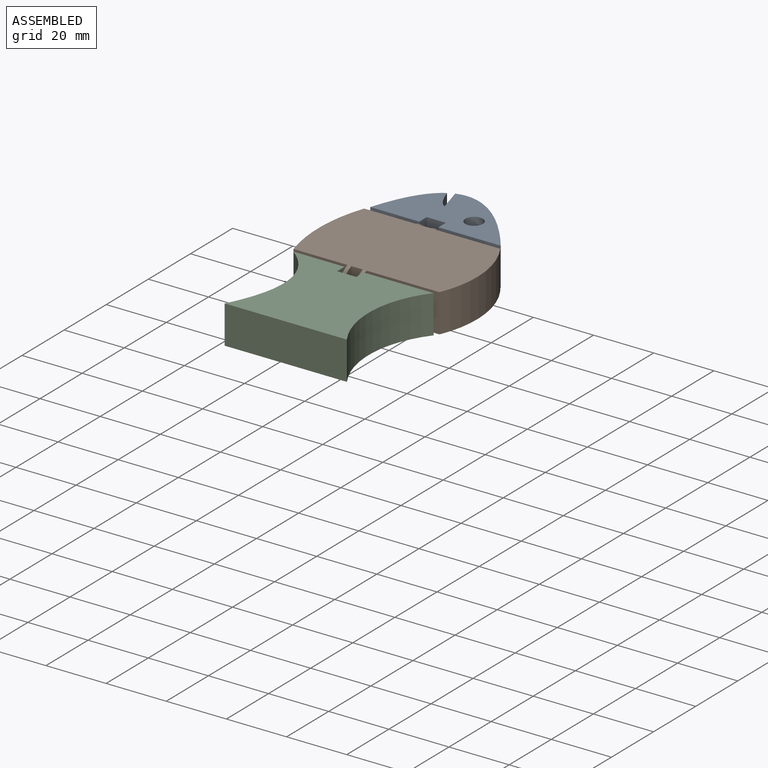
[diagram: assembled view]
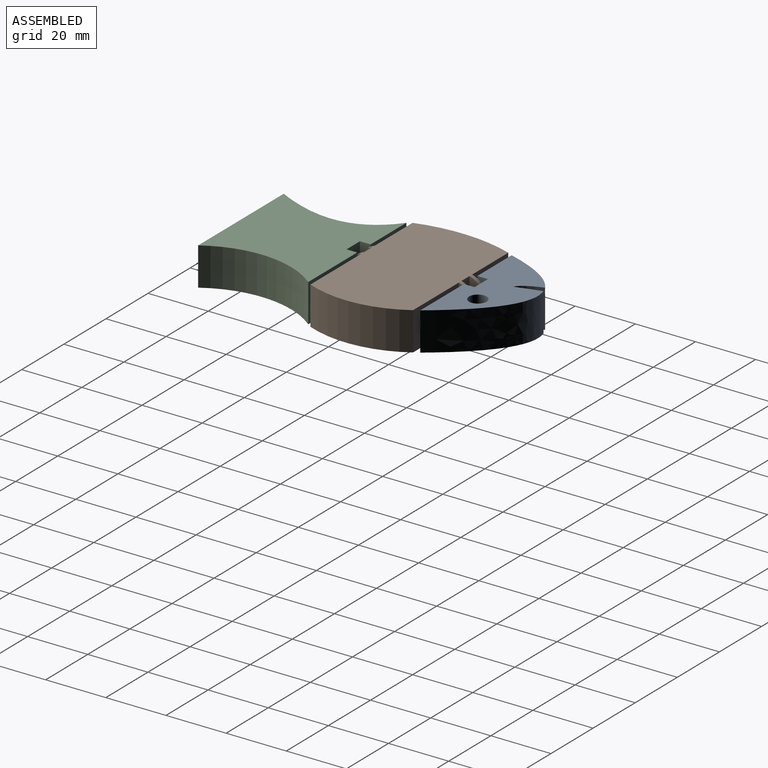
[diagram: assembled view, second angle]
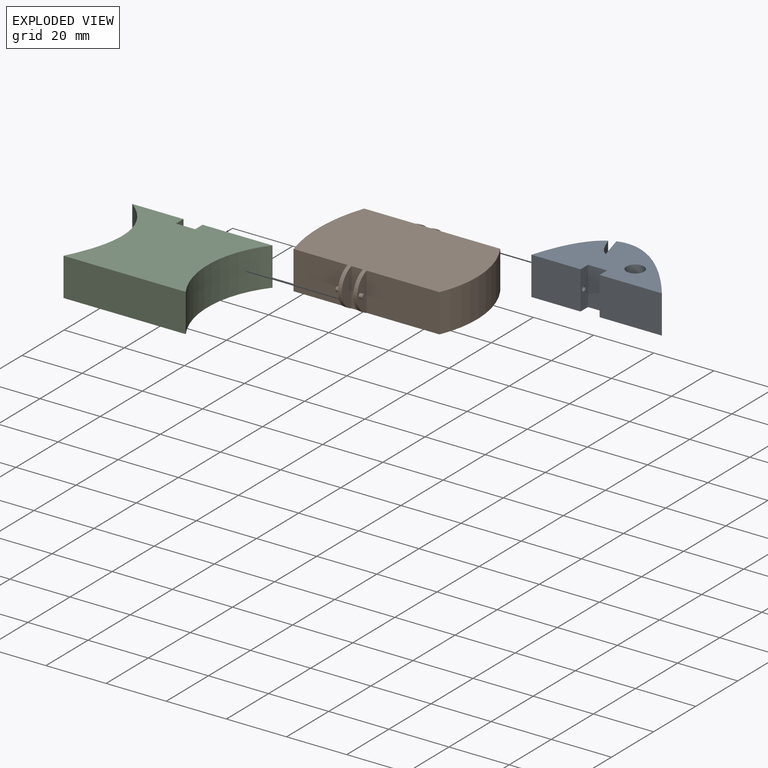
[diagram: exploded view]
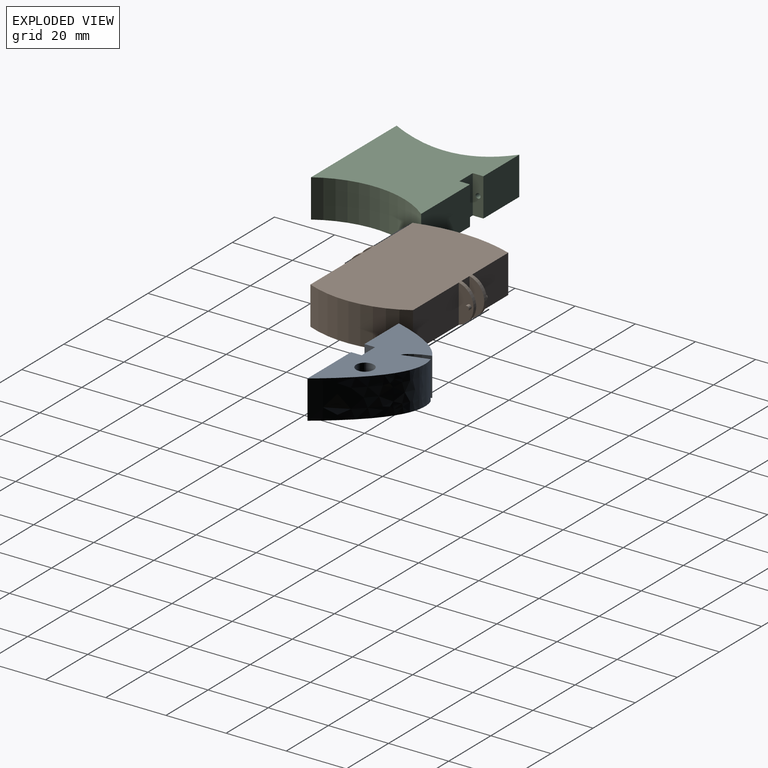
[diagram: exploded view, second angle]
ASSEMBLY  parts=3 mates=2
PART A: 17 faces, bbox 46.8x12.7x26 mm
  f0: extruded ~12.7x1.36mm, area 17.3mm2, adj f1,f5,f9,f16
  f1: plane 46.83x26.04mm, normal (0,-1,0), area 542.3mm2, adj f0,f2,f3,f4,f6,f7,f8,f9
  f2: extruded ~19.43x12.7mm, area 295.5mm2, adj f1,f5,f7,f15
  f3: extruded ~29.42x20.93mm, area 481.4mm2, adj f1,f5,f8,f16
  f4: plane 12.7x3.54mm, normal (1,0,0), area 42.8mm2, adj f1,f5,f10,f13,f15
  f5: plane 46.82x26.04mm, normal (0,1,0), area 542.3mm2, adj f0,f2,f3,f4,f6,f7,f8,f9
  f6: cylinder r=2.93mm len=12.7mm, axis (0,-1,0), area 233.6mm2, adj f1,f5
  f7: extruded ~12.7x7.45mm, area 112.1mm2, adj f1,f2,f5,f8
  f8: plane 12.7x8.38mm, normal (-0.96,0,-0.27), area 110.6mm2, adj f1,f3,f5,f7
  f9: plane 12.7x3.54mm, normal (-1,0,0), area 42.8mm2, adj f0,f1,f5,f10,f11
  f10: plane 12.7x6.35mm, normal (0,0,-1), area 80.6mm2, adj f1,f4,f5,f9
  f11: cylinder r=0.83mm len=2.54mm, axis (-1,0,0), area 13.2mm2, adj f9,f12
  f12: plane 1.65x1.65mm, normal (-1,0,0), area 2.1mm2, adj f11
  f13: cylinder r=0.83mm len=2.54mm, axis (1,0,0), area 13.2mm2, adj f4,f14
  f14: plane 1.65x1.65mm, normal (1,0,0), area 2.1mm2, adj f13
  f15: plane 16.33x12.7mm, normal (0,0,-1), area 207.4mm2, adj f1,f2,f4,f5
  f16: plane 19.35x12.7mm, normal (0,0,-1), area 245.8mm2, adj f0,f1,f3,f5
PART B: 30 faces, bbox 53.5x41.9x12.7 mm
  f0: plane 12.7x4.58mm, normal (1,0,0), area 40.8mm2, adj f8,f27,f28
  f1: plane 12.7x4.58mm, normal (-1,0,0), area 40.8mm2, adj f9,f22,f26
  f2: plane 12.7x4.58mm, normal (-1,0,0), area 42.6mm2, adj f21,f27
  f3: plane 12.7x4.58mm, normal (1,0,0), area 42.6mm2, adj f21,f26
  f4: plane 17.15x12.7mm, normal (0,1,0), area 217.8mm2, adj f5,f6,f11,f25
  f5: plane 53.53x32.39mm, normal (0,0,1), area 1661mm2, adj f4,f7,f8,f9,f14,f17,f18,f21
  f6: plane 53.53x32.39mm, normal (0,0,-1), area 1661mm2, adj f4,f7,f8,f9,f14,f17,f18,f21
  f7: plane 21.74x12.7mm, normal (0,1,0), area 276.1mm2, adj f5,f6,f10,f24
  f8: plane 24.21x12.7mm, normal (0,-1,0), area 307.4mm2, adj f0,f5,f6,f24
  f9: plane 17.97x12.7mm, normal (0,-1,0), area 228.2mm2, adj f1,f5,f6,f25
  f10: plane 12.7x4.9mm, normal (1,0,0), area 44.3mm2, adj f7,f15,f17
  f11: plane 12.7x4.9mm, normal (-1,0,0), area 44mm2, adj f4,f18,f19
  f12: plane 12.7x4.9mm, normal (1,0,0), area 46.1mm2, adj f14,f18
  f13: plane 12.7x4.9mm, normal (-1,0,0), area 46.1mm2, adj f14,f17
  f14: plane 12.7x3.81mm, normal (0,1,0), area 48.4mm2, adj f5,f6,f12,f13
  f15: cylinder r=0.76mm len=1.52mm, axis (-1,0,0), area 6.1mm2, adj f10,f16
  f16: plane 1.52x1.52mm, normal (1,0,0), area 1.8mm2, adj f15
  f17: cylinder r=6.56mm len=12.7mm, axis (1,0,0), area 21.9mm2, adj f5,f6,f10,f13
  f18: cylinder r=6.56mm len=12.7mm, axis (1,0,0), area 21.9mm2, adj f5,f6,f11,f12
  f19: cylinder r=0.83mm len=1.65mm, axis (1,0,0), area 6.6mm2, adj f11,f20
  f20: plane 1.65x1.65mm, normal (-1,0,0), area 2.1mm2, adj f19
  f21: plane 12.7x3.81mm, normal (0,-1,0), area 48.4mm2, adj f2,f3,f5,f6
  f22: cylinder r=0.76mm len=1.52mm, axis (1,0,0), area 6.1mm2, adj f1,f23
  f23: plane 1.52x1.52mm, normal (-1,0,0), area 1.8mm2, adj f22
  f24: cylinder r=35.17mm len=32.39mm, axis (0,0,1), area 428.8mm2, adj f5,f6,f7,f8
  f25: cylinder r=52.42mm len=32.39mm, axis (0,0,1), area 418.3mm2, adj f4,f5,f6,f9
  f26: cylinder r=6.69mm len=12.7mm, axis (-1,0,0), area 21.2mm2, adj f1,f3,f5,f6
  f27: cylinder r=6.69mm len=12.7mm, axis (-1,0,0), area 21.3mm2, adj f0,f2,f5,f6
  f28: cylinder r=0.76mm len=1.52mm, axis (-1,0,0), area 6.1mm2, adj f0,f29
  f29: plane 1.52x1.52mm, normal (1,0,0), area 1.8mm2, adj f28
PART C: 14 faces, bbox 46.6x12.7x38.1 mm
  f0: plane 23.24x12.7mm, normal (0,0,1), area 295.2mm2, adj f1,f2,f6,f13
  f1: plane 46.6x38.1mm, normal (0,-1,0), area 1281.7mm2, adj f0,f3,f4,f5,f6,f11,f12,f13
  f2: plane 46.6x38.1mm, normal (0,1,0), area 1281.7mm2, adj f0,f3,f4,f5,f6,f11,f12,f13
  f3: plane 17.01x12.7mm, normal (0,0,1), area 216mm2, adj f1,f2,f4,f11
  f4: plane 12.7x3.54mm, normal (1,0,0), area 42.8mm2, adj f1,f2,f3,f5,f9
  f5: plane 12.7x6.35mm, normal (0,0,1), area 80.6mm2, adj f1,f2,f4,f6
  f6: plane 12.7x3.54mm, normal (-1,0,0), area 42.8mm2, adj f0,f1,f2,f5,f7
  f7: cylinder r=0.83mm len=2.54mm, axis (-1,0,0), area 13.2mm2, adj f6,f8
  f8: plane 1.65x1.65mm, normal (-1,0,0), area 2.1mm2, adj f7
  f9: cylinder r=0.83mm len=2.54mm, axis (1,0,0), area 13.2mm2, adj f4,f10
  f10: plane 1.65x1.65mm, normal (1,0,0), area 2.1mm2, adj f9
  f11: extruded ~38.1x12.7mm, area 537.1mm2, adj f1,f2,f3,f12
  f12: plane 40.65x12.7mm, normal (0,0,-1), area 516.3mm2, adj f1,f2,f11,f13
  f13: cylinder r=32.91mm len=38.1mm, axis (0,-1,0), area 517mm2, adj f0,f1,f2,f12
PLACE A rot(axis=(-1,0,0),90deg) t=(55.31,-3.45,5.91)mm
PLACE B t=(55.31,-1.71,5.9)mm
PLACE C rot(axis=(-1,0,0),90deg) t=(55.31,-73.6,5.9)mm
MATE fastened C.f9 <-> B.f22  axis (-1,0,0) through (58.48,-37.27,12.25)mm
MATE fastened B.f19 <-> A.f11  axis (1,0,0) through (52.13,1.77,12.26)mm
